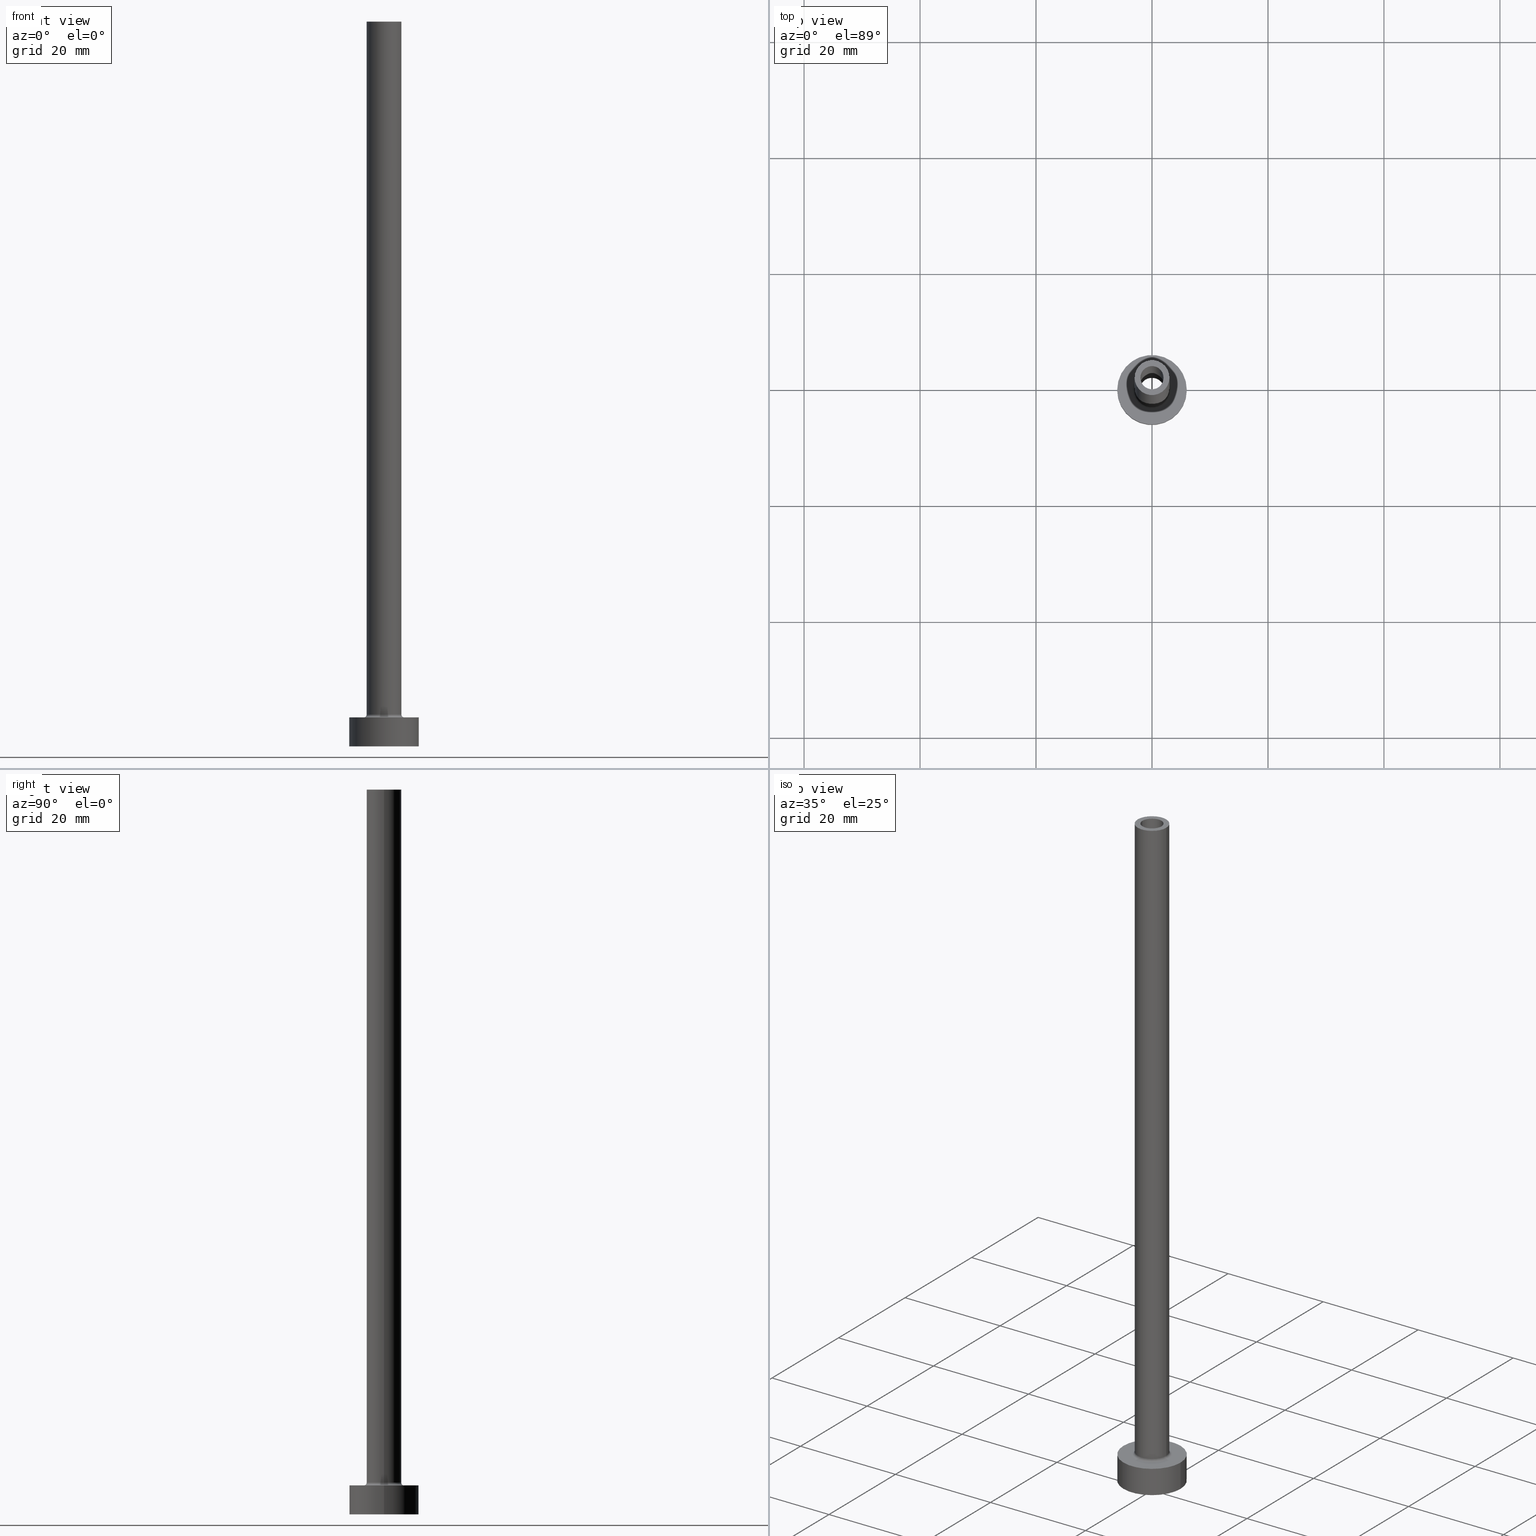
[diagram: canonical four-view strip — front | top / right | iso, engineering-drawing reading convention]
A machine part, canonical four-view strip (front | top / right | iso — engineering-drawing reading convention). The complete STEP part file that produces these views, byte-faithful:
ISO-10303-21;
HEADER;
FILE_DESCRIPTION (( 'STEP AP203' ),
    '1' );
FILE_NAME ('3db4.STEP',
    '2023-02-13T11:59:37',
    ( '' ),
    ( '' ),
    'SwSTEP 2.0',
    'SolidWorks 2019',
    '' );
FILE_SCHEMA (( 'CONFIG_CONTROL_DESIGN' ));
ENDSEC;

DATA;
#1 = EDGE_CURVE ( 'NONE', #342, #305, #122, .T. ) ;
#2 = ORIENTED_EDGE ( 'NONE', *, *, #233, .F. ) ;
#3 = LINE ( 'NONE', #146, #54 ) ;
#4 = EDGE_LOOP ( 'NONE', ( #455, #388, #269, #357 ) ) ;
#5 = VERTEX_POINT ( 'NONE', #42 ) ;
#6 = CARTESIAN_POINT ( 'NONE',  ( 0.000000000000000000, 0.000000000000000000, 0.000000000000000000 ) ) ;
#7 = DIRECTION ( 'NONE',  ( 0.000000000000000000, 0.000000000000000000, 1.000000000000000000 ) ) ;
#8 = ORIENTED_EDGE ( 'NONE', *, *, #61, .T. ) ;
#9 = AXIS2_PLACEMENT_3D ( 'NONE', #226, #79, #372 ) ;
#10 = DIRECTION ( 'NONE',  ( 1.000000000000000000, 0.000000000000000000, 0.000000000000000000 ) ) ;
#11 = DIRECTION ( 'NONE',  ( 0.000000000000000000, 0.000000000000000000, 1.000000000000000000 ) ) ;
#12 = AXIS2_PLACEMENT_3D ( 'NONE', #256, #204, #396 ) ;
#13 = VECTOR ( 'NONE', #126, 1000.000000000000000 ) ;
#14 = DIRECTION ( 'NONE',  ( -0.000000000000000000, -0.000000000000000000, -1.000000000000000000 ) ) ;
#15 = CYLINDRICAL_SURFACE ( 'NONE', #415, 6.000000000000000888 ) ;
#16 = CARTESIAN_POINT ( 'NONE',  ( -2.149999999999999911, 0.000000000000000000, 0.000000000000000000 ) ) ;
#17 = DIRECTION ( 'NONE',  ( 0.000000000000000000, 0.000000000000000000, 1.000000000000000000 ) ) ;
#18 = CARTESIAN_POINT ( 'NONE',  ( 0.000000000000000000, 0.000000000000000000, 5.000000000000000000 ) ) ;
#19 = ORGANIZATION ( 'NEUR�EN�', 'NEUR�EN�', '' ) ;
#20 = FACE_BOUND ( 'NONE', #93, .T. ) ;
#21 = APPROVAL ( #84, 'NEUR�EN�' ) ;
#22 = PERSON ( 'NEUR�EN�', 'NEUR�EN�', 'NEUR�EN�', ('NEUR�EN�'), ('NEUR�EN�'), ('NEUR�EN�') ) ;
#23 = VERTEX_POINT ( 'NONE', #187 ) ;
#24 = CARTESIAN_POINT ( 'NONE',  ( 0.000000000000000000, 0.000000000000000000, 80.00000000000000000 ) ) ;
#25 = ORIENTED_EDGE ( 'NONE', *, *, #144, .F. ) ;
#26 = AXIS2_PLACEMENT_3D ( 'NONE', #6, #205, #334 ) ;
#27 = PERSON_AND_ORGANIZATION ( #22, #19 ) ;
#28 = VERTEX_POINT ( 'NONE', #333 ) ;
#29 = DIRECTION ( 'NONE',  ( 1.000000000000000000, 0.000000000000000000, 0.000000000000000000 ) ) ;
#30 = FACE_OUTER_BOUND ( 'NONE', #227, .T. ) ;
#31 = ORIENTED_EDGE ( 'NONE', *, *, #332, .F. ) ;
#32 = CIRCLE ( 'NONE', #361, 2.000000000000000000 ) ;
#33 = DATE_TIME_ROLE ( 'classification_date' ) ;
#34 = EDGE_LOOP ( 'NONE', ( #38, #378, #207, #181 ) ) ;
#35 = CYLINDRICAL_SURFACE ( 'NONE', #90, 6.000000000000000888 ) ;
#36 = FACE_BOUND ( 'NONE', #460, .T. ) ;
#37 =( NAMED_UNIT ( * ) PLANE_ANGLE_UNIT ( ) SI_UNIT ( $, .RADIAN. ) );
#38 = ORIENTED_EDGE ( 'NONE', *, *, #387, .F. ) ;
#39 = EDGE_LOOP ( 'NONE', ( #423, #298 ) ) ;
#40 = DIRECTION ( 'NONE',  ( -0.000000000000000000, -0.000000000000000000, -1.000000000000000000 ) ) ;
#41 = EDGE_LOOP ( 'NONE', ( #395, #133, #135, #25 ) ) ;
#42 = CARTESIAN_POINT ( 'NONE',  ( 2.149999999999999911, 2.632990618166808742E-16, 0.000000000000000000 ) ) ;
#43 = VECTOR ( 'NONE', #64, 1000.000000000000000 ) ;
#44 = EDGE_CURVE ( 'NONE', #297, #421, #32, .T. ) ;
#45 = ADVANCED_FACE ( 'NONE', ( #20, #162 ), #96, .F. ) ;
#46 = DIRECTION ( 'NONE',  ( 1.000000000000000000, 0.000000000000000000, 0.000000000000000000 ) ) ;
#47 = APPROVAL_PERSON_ORGANIZATION ( #259, #160, #358 ) ;
#48 = CARTESIAN_POINT ( 'NONE',  ( 3.500000000000000444, 0.000000000000000000, 5.000000000000002665 ) ) ;
#49 = DIRECTION ( 'NONE',  ( 0.000000000000000000, 0.000000000000000000, 1.000000000000000000 ) ) ;
#50 = PERSON_AND_ORGANIZATION_ROLE ( 'creator' ) ;
#51 = DIRECTION ( 'NONE',  ( 1.000000000000000000, 0.000000000000000000, 0.000000000000000000 ) ) ;
#52 = PERSON_AND_ORGANIZATION ( #22, #19 ) ;
#53 = DIRECTION ( 'NONE',  ( -1.000000000000000000, 1.224646799147354440E-16, 0.000000000000000000 ) ) ;
#54 = VECTOR ( 'NONE', #217, 1000.000000000000000 ) ;
#55 = LOCAL_TIME ( 12, 59, 37.00000000000000000, #98 ) ;
#56 = CALENDAR_DATE ( 2023, 13, 2 ) ;
#57 = ADVANCED_FACE ( 'NONE', ( #409 ), #15, .T. ) ;
#58 = VERTEX_POINT ( 'NONE', #381 ) ;
#59 = CARTESIAN_POINT ( 'NONE',  ( -2.000000000000000000, 0.000000000000000000, 80.00000000000000000 ) ) ;
#60 = DIRECTION ( 'NONE',  ( 0.000000000000000000, 0.000000000000000000, 1.000000000000000000 ) ) ;
#61 = EDGE_CURVE ( 'NONE', #28, #58, #131, .T. ) ;
#62 = PRODUCT_DEFINITION_FORMATION_WITH_SPECIFIED_SOURCE ( 'LIBOVOLN�', '', #74, .NOT_KNOWN. ) ;
#63 = VERTEX_POINT ( 'NONE', #270 ) ;
#64 = DIRECTION ( 'NONE',  ( 0.000000000000000000, 0.000000000000000000, -1.000000000000000000 ) ) ;
#65 = ORIENTED_EDGE ( 'NONE', *, *, #1, .T. ) ;
#66 = DIRECTION ( 'NONE',  ( 0.000000000000000000, 0.000000000000000000, -1.000000000000000000 ) ) ;
#67 = CARTESIAN_POINT ( 'NONE',  ( -2.000000000000000000, 0.000000000000000000, 125.0000000000000000 ) ) ;
#68 = EDGE_CURVE ( 'NONE', #28, #179, #215, .T. ) ;
#69 = CARTESIAN_POINT ( 'NONE',  ( 2.000000000000000000, 2.449293598294705921E-16, 125.0000000000000000 ) ) ;
#70 = DIRECTION ( 'NONE',  ( 1.000000000000000000, 0.000000000000000000, 0.000000000000000000 ) ) ;
#71 = VECTOR ( 'NONE', #377, 1000.000000000000000 ) ;
#72 = EDGE_LOOP ( 'NONE', ( #414, #288, #249, #128 ) ) ;
#73 = EDGE_LOOP ( 'NONE', ( #319, #244 ) ) ;
#74 = PRODUCT ( '3db4', '3db4', '', ( #311 ) ) ;
#75 = AXIS2_PLACEMENT_3D ( 'NONE', #436, #7, #219 ) ;
#76 = APPROVAL ( #399, 'NEUR�EN�' ) ;
#77 = EDGE_CURVE ( 'NONE', #5, #290, #299, .T. ) ;
#78 = ORIENTED_EDGE ( 'NONE', *, *, #129, .F. ) ;
#79 = DIRECTION ( 'NONE',  ( 0.000000000000000000, 0.000000000000000000, 1.000000000000000000 ) ) ;
#80 = CYLINDRICAL_SURFACE ( 'NONE', #242, 3.000000000000000444 ) ;
#81 = DIRECTION ( 'NONE',  ( -0.000000000000000000, -0.000000000000000000, -1.000000000000000000 ) ) ;
#82 = PERSON_AND_ORGANIZATION ( #22, #19 ) ;
#83 = CARTESIAN_POINT ( 'NONE',  ( -3.500000000000000444, 4.286263797015737088E-16, 5.500000000000005329 ) ) ;
#84 = APPROVAL_STATUS ( 'not_yet_approved' ) ;
#85 = DIRECTION ( 'NONE',  ( 0.000000000000000000, -1.000000000000000000, 0.000000000000000000 ) ) ;
#86 = CARTESIAN_POINT ( 'NONE',  ( 0.000000000000000000, 0.000000000000000000, 5.000000000000000000 ) ) ;
#87 = CARTESIAN_POINT ( 'NONE',  ( 0.000000000000000000, 0.000000000000000000, 80.00000000000000000 ) ) ;
#88 = EDGE_CURVE ( 'NONE', #63, #97, #442, .T. ) ;
#89 = DATE_TIME_ROLE ( 'creation_date' ) ;
#90 = AXIS2_PLACEMENT_3D ( 'NONE', #328, #40, #360 ) ;
#91 = CARTESIAN_POINT ( 'NONE',  ( 6.000000000000000888, 7.347880794884120722E-16, 5.000000000000000000 ) ) ;
#92 = APPROVAL_PERSON_ORGANIZATION ( #52, #21, #374 ) ;
#93 = EDGE_LOOP ( 'NONE', ( #351, #424 ) ) ;
#94 = DIRECTION ( 'NONE',  ( 0.000000000000000000, 0.000000000000000000, 1.000000000000000000 ) ) ;
#95 = EDGE_CURVE ( 'NONE', #58, #434, #335, .T. ) ;
#96 = PLANE ( 'NONE',  #450 ) ;
#97 = VERTEX_POINT ( 'NONE', #192 ) ;
#98 = COORDINATED_UNIVERSAL_TIME_OFFSET ( 1, 0, .AHEAD. ) ;
#99 = CC_DESIGN_SECURITY_CLASSIFICATION ( #253, ( #62 ) ) ;
#100 = CARTESIAN_POINT ( 'NONE',  ( 0.000000000000000000, 0.000000000000000000, 0.000000000000000000 ) ) ;
#101 = CARTESIAN_POINT ( 'NONE',  ( -6.000000000000000888, 0.000000000000000000, 5.000000000000000000 ) ) ;
#102 = CIRCLE ( 'NONE', #291, 6.000000000000000888 ) ;
#103 = CARTESIAN_POINT ( 'NONE',  ( -3.500000000000000444, 4.286263797015737088E-16, 5.000000000000002665 ) ) ;
#104 =( NAMED_UNIT ( * ) SI_UNIT ( $, .STERADIAN. ) SOLID_ANGLE_UNIT ( ) );
#105 = PERSON_AND_ORGANIZATION_ROLE ( 'classification_officer' ) ;
#106 = CARTESIAN_POINT ( 'NONE',  ( 0.000000000000000000, 0.000000000000000000, 5.500000000000005329 ) ) ;
#107 = AXIS2_PLACEMENT_3D ( 'NONE', #392, #210, #393 ) ;
#108 = APPROVAL_DATE_TIME ( #429, #76 ) ;
#109 = ORIENTED_EDGE ( 'NONE', *, *, #428, .T. ) ;
#110 = LOCAL_TIME ( 12, 59, 37.00000000000000000, #384 ) ;
#111 = ORIENTED_EDGE ( 'NONE', *, *, #196, .F. ) ;
#112 = PERSON_AND_ORGANIZATION_ROLE ( 'creator' ) ;
#113 = DIRECTION ( 'NONE',  ( 0.000000000000000000, 0.000000000000000000, 1.000000000000000000 ) ) ;
#114 = FACE_OUTER_BOUND ( 'NONE', #330, .T. ) ;
#115 = EDGE_CURVE ( 'NONE', #294, #348, #102, .T. ) ;
#116 = DIRECTION ( 'NONE',  ( -1.000000000000000000, 0.000000000000000000, 0.000000000000000000 ) ) ;
#117 = FACE_OUTER_BOUND ( 'NONE', #72, .T. ) ;
#118 = CARTESIAN_POINT ( 'NONE',  ( 0.000000000000000000, 0.000000000000000000, 125.0000000000000000 ) ) ;
#119 = FACE_OUTER_BOUND ( 'NONE', #4, .T. ) ;
#120 = CIRCLE ( 'NONE', #107, 3.500000000000000444 ) ;
#121 = ADVANCED_FACE ( 'NONE', ( #446 ), #195, .F. ) ;
#122 = CIRCLE ( 'NONE', #238, 6.000000000000000888 ) ;
#123 = CARTESIAN_POINT ( 'NONE',  ( 0.000000000000000000, 0.000000000000000000, 5.000000000000000000 ) ) ;
#124 = DIRECTION ( 'NONE',  ( 1.000000000000000000, 0.000000000000000000, 0.000000000000000000 ) ) ;
#125 = FACE_BOUND ( 'NONE', #169, .T. ) ;
#126 = DIRECTION ( 'NONE',  ( -0.000000000000000000, -0.000000000000000000, -1.000000000000000000 ) ) ;
#127 = CARTESIAN_POINT ( 'NONE',  ( 0.000000000000000000, 0.000000000000000000, 0.000000000000000000 ) ) ;
#128 = ORIENTED_EDGE ( 'NONE', *, *, #212, .F. ) ;
#129 = EDGE_CURVE ( 'NONE', #305, #342, #263, .T. ) ;
#130 = CARTESIAN_POINT ( 'NONE',  ( -6.000000000000000888, 0.000000000000000000, 5.000000000000000000 ) ) ;
#131 = CIRCLE ( 'NONE', #317, 3.000000000000000444 ) ;
#132 = COORDINATED_UNIVERSAL_TIME_OFFSET ( 1, 0, .AHEAD. ) ;
#133 = ORIENTED_EDGE ( 'NONE', *, *, #387, .T. ) ;
#134 = DIRECTION ( 'NONE',  ( 0.000000000000000000, 0.000000000000000000, 1.000000000000000000 ) ) ;
#135 = ORIENTED_EDGE ( 'NONE', *, *, #77, .T. ) ;
#136 = DIRECTION ( 'NONE',  ( -1.000000000000000000, 0.000000000000000000, 0.000000000000000000 ) ) ;
#137 = CC_DESIGN_APPROVAL ( #160, ( #62 ) ) ;
#138 = ADVANCED_FACE ( 'NONE', ( #198 ), #245, .F. ) ;
#139 = CARTESIAN_POINT ( 'NONE',  ( 2.000000000000000000, 2.449293598294705921E-16, 80.00000000000000000 ) ) ;
#140 = LINE ( 'NONE', #454, #43 ) ;
#141 = ORIENTED_EDGE ( 'NONE', *, *, #115, .F. ) ;
#142 = CIRCLE ( 'NONE', #222, 2.149999999999999911 ) ;
#143 = ORIENTED_EDGE ( 'NONE', *, *, #129, .T. ) ;
#144 = EDGE_CURVE ( 'NONE', #23, #290, #3, .T. ) ;
#145 = VERTEX_POINT ( 'NONE', #425 ) ;
#146 = CARTESIAN_POINT ( 'NONE',  ( -2.149999999999999911, 0.000000000000000000, 86.08111831820431803 ) ) ;
#147 = PLANE ( 'NONE',  #354 ) ;
#148 = CC_DESIGN_DATE_AND_TIME_ASSIGNMENT ( #243, #33, ( #253 ) ) ;
#149 = PERSON_AND_ORGANIZATION ( #22, #19 ) ;
#150 = ORIENTED_EDGE ( 'NONE', *, *, #183, .F. ) ;
#151 = CARTESIAN_POINT ( 'NONE',  ( 2.000000000000000000, 2.449293598294705921E-16, 125.0000000000000000 ) ) ;
#152 = EDGE_CURVE ( 'NONE', #177, #297, #461, .T. ) ;
#153 = ORIENTED_EDGE ( 'NONE', *, *, #332, .T. ) ;
#154 = EDGE_CURVE ( 'NONE', #58, #28, #157, .T. ) ;
#155 = FACE_OUTER_BOUND ( 'NONE', #41, .T. ) ;
#156 = DESIGN_CONTEXT ( 'detailed design', #427, 'design' ) ;
#157 = CIRCLE ( 'NONE', #412, 3.000000000000000444 ) ;
#158 = DIRECTION ( 'NONE',  ( -0.000000000000000000, -0.000000000000000000, -1.000000000000000000 ) ) ;
#159 = AXIS2_PLACEMENT_3D ( 'NONE', #284, #165, #313 ) ;
#160 = APPROVAL ( #206, 'NEUR�EN�' ) ;
#161 = APPROVAL_PERSON_ORGANIZATION ( #149, #76, #180 ) ;
#162 = FACE_OUTER_BOUND ( 'NONE', #39, .T. ) ;
#163 = AXIS2_PLACEMENT_3D ( 'NONE', #83, #189, #53 ) ;
#164 = FACE_OUTER_BOUND ( 'NONE', #426, .T. ) ;
#165 = DIRECTION ( 'NONE',  ( 0.000000000000000000, 0.000000000000000000, -1.000000000000000000 ) ) ;
#166 = ADVANCED_FACE ( 'NONE', ( #182 ), #35, .T. ) ;
#167 = CIRCLE ( 'NONE', #435, 2.149999999999999911 ) ;
#168 = DIRECTION ( 'NONE',  ( -0.000000000000000000, -0.000000000000000000, -1.000000000000000000 ) ) ;
#169 = EDGE_LOOP ( 'NONE', ( #240, #325 ) ) ;
#170 = DIRECTION ( 'NONE',  ( 0.000000000000000000, 0.000000000000000000, 1.000000000000000000 ) ) ;
#171 = EDGE_LOOP ( 'NONE', ( #197, #200, #321, #232 ) ) ;
#172 = DIRECTION ( 'NONE',  ( 1.000000000000000000, 0.000000000000000000, 0.000000000000000000 ) ) ;
#173 = CC_DESIGN_PERSON_AND_ORGANIZATION_ASSIGNMENT ( #82, #306, ( #74 ) ) ;
#174 = LINE ( 'NONE', #101, #13 ) ;
#175 = CIRCLE ( 'NONE', #289, 3.500000000000000444 ) ;
#176 = TOROIDAL_SURFACE ( 'NONE', #194, 3.500000000000000444, 0.5000000000000000000 ) ;
#177 = VERTEX_POINT ( 'NONE', #151 ) ;
#178 = DIRECTION ( 'NONE',  ( 0.000000000000000000, 0.000000000000000000, -1.000000000000000000 ) ) ;
#179 = VERTEX_POINT ( 'NONE', #103 ) ;
#180 = APPROVAL_ROLE ( '' ) ;
#181 = ORIENTED_EDGE ( 'NONE', *, *, #322, .T. ) ;
#182 = FACE_OUTER_BOUND ( 'NONE', #237, .T. ) ;
#183 = EDGE_CURVE ( 'NONE', #348, #294, #366, .T. ) ;
#184 = ORIENTED_EDGE ( 'NONE', *, *, #322, .F. ) ;
#185 = DIRECTION ( 'NONE',  ( 1.000000000000000000, 0.000000000000000000, 0.000000000000000000 ) ) ;
#186 = DIRECTION ( 'NONE',  ( -1.000000000000000000, 0.000000000000000000, 0.000000000000000000 ) ) ;
#187 = CARTESIAN_POINT ( 'NONE',  ( -2.149999999999999911, 0.000000000000000000, 80.00000000000000000 ) ) ;
#188 = AXIS2_PLACEMENT_3D ( 'NONE', #371, #443, #124 ) ;
#189 = DIRECTION ( 'NONE',  ( 1.224646799147353207E-16, 1.000000000000000000, -0.000000000000000000 ) ) ;
#190 = CARTESIAN_POINT ( 'NONE',  ( 0.000000000000000000, 0.000000000000000000, 125.0000000000000000 ) ) ;
#191 = EDGE_CURVE ( 'NONE', #177, #145, #314, .T. ) ;
#192 = CARTESIAN_POINT ( 'NONE',  ( 3.000000000000000444, 3.673940397442060361E-16, 125.0000000000000000 ) ) ;
#193 = DIRECTION ( 'NONE',  ( -0.000000000000000000, -0.000000000000000000, -1.000000000000000000 ) ) ;
#194 = AXIS2_PLACEMENT_3D ( 'NONE', #403, #447, #46 ) ;
#195 = CYLINDRICAL_SURFACE ( 'NONE', #159, 2.149999999999999911 ) ;
#196 = EDGE_CURVE ( 'NONE', #421, #297, #287, .T. ) ;
#197 = ORIENTED_EDGE ( 'NONE', *, *, #152, .F. ) ;
#198 = FACE_OUTER_BOUND ( 'NONE', #171, .T. ) ;
#199 = TOROIDAL_SURFACE ( 'NONE', #188, 3.500000000000000444, 0.5000000000000000000 ) ;
#200 = ORIENTED_EDGE ( 'NONE', *, *, #191, .T. ) ;
#201 = ORIENTED_EDGE ( 'NONE', *, *, #380, .F. ) ;
#202 = PERSON_AND_ORGANIZATION ( #22, #19 ) ;
#203 = ORIENTED_EDGE ( 'NONE', *, *, #1, .F. ) ;
#204 = DIRECTION ( 'NONE',  ( 0.000000000000000000, 0.000000000000000000, 1.000000000000000000 ) ) ;
#205 = DIRECTION ( 'NONE',  ( 0.000000000000000000, 0.000000000000000000, 1.000000000000000000 ) ) ;
#206 = APPROVAL_STATUS ( 'not_yet_approved' ) ;
#207 = ORIENTED_EDGE ( 'NONE', *, *, #144, .T. ) ;
#208 = CIRCLE ( 'NONE', #315, 2.149999999999999911 ) ;
#209 = CALENDAR_DATE ( 2023, 13, 2 ) ;
#210 = DIRECTION ( 'NONE',  ( -0.000000000000000000, -0.000000000000000000, -1.000000000000000000 ) ) ;
#211 = PLANE ( 'NONE',  #26 ) ;
#212 = EDGE_CURVE ( 'NONE', #179, #434, #120, .T. ) ;
#213 = CARTESIAN_POINT ( 'NONE',  ( 0.000000000000000000, 0.000000000000000000, 125.0000000000000000 ) ) ;
#214 = CLOSED_SHELL ( 'NONE', ( #344, #370, #422, #271, #166, #57, #251, #229, #456, #445, #356, #121, #45, #138 ) ) ;
#215 = CIRCLE ( 'NONE', #163, 0.4999999999999995559 ) ;
#216 = ORIENTED_EDGE ( 'NONE', *, *, #212, .T. ) ;
#217 = DIRECTION ( 'NONE',  ( 0.000000000000000000, 0.000000000000000000, -1.000000000000000000 ) ) ;
#218 = DATE_AND_TIME ( #318, #110 ) ;
#219 = DIRECTION ( 'NONE',  ( 1.000000000000000000, 0.000000000000000000, -0.000000000000000000 ) ) ;
#220 = AXIS2_PLACEMENT_3D ( 'NONE', #100, #60, #379 ) ;
#221 = CARTESIAN_POINT ( 'NONE',  ( 2.149999999999999911, 2.632990618166808742E-16, 80.00000000000000000 ) ) ;
#222 = AXIS2_PLACEMENT_3D ( 'NONE', #24, #248, #386 ) ;
#223 = LINE ( 'NONE', #369, #303 ) ;
#224 = CYLINDRICAL_SURFACE ( 'NONE', #281, 2.000000000000000000 ) ;
#225 = EDGE_CURVE ( 'NONE', #63, #28, #398, .T. ) ;
#226 = CARTESIAN_POINT ( 'NONE',  ( 0.000000000000000000, 0.000000000000000000, 125.0000000000000000 ) ) ;
#227 = EDGE_LOOP ( 'NONE', ( #295, #418 ) ) ;
#228 = AXIS2_PLACEMENT_3D ( 'NONE', #213, #324, #116 ) ;
#229 = ADVANCED_FACE ( 'NONE', ( #36, #114 ), #211, .F. ) ;
#230 = PLANE ( 'NONE',  #75 ) ;
#231 = DATE_AND_TIME ( #56, #457 ) ;
#232 = ORIENTED_EDGE ( 'NONE', *, *, #44, .F. ) ;
#233 = EDGE_CURVE ( 'NONE', #97, #58, #223, .T. ) ;
#234 = VECTOR ( 'NONE', #158, 1000.000000000000000 ) ;
#235 = CC_DESIGN_APPROVAL ( #76, ( #253 ) ) ;
#236 = DIRECTION ( 'NONE',  ( 0.000000000000000000, 0.000000000000000000, 1.000000000000000000 ) ) ;
#237 = EDGE_LOOP ( 'NONE', ( #150, #336, #143, #31 ) ) ;
#238 = AXIS2_PLACEMENT_3D ( 'NONE', #365, #113, #400 ) ;
#239 = ORIENTED_EDGE ( 'NONE', *, *, #88, .F. ) ;
#240 = ORIENTED_EDGE ( 'NONE', *, *, #428, .F. ) ;
#241 = PRODUCT_DEFINITION ( 'NEZN�M�', '', #62, #156 ) ;
#242 = AXIS2_PLACEMENT_3D ( 'NONE', #190, #81, #301 ) ;
#243 = DATE_AND_TIME ( #209, #55 ) ;
#244 = ORIENTED_EDGE ( 'NONE', *, *, #312, .T. ) ;
#245 = CYLINDRICAL_SURFACE ( 'NONE', #308, 2.000000000000000000 ) ;
#246 = AXIS2_PLACEMENT_3D ( 'NONE', #408, #85, #341 ) ;
#247 = CARTESIAN_POINT ( 'NONE',  ( -6.000000000000000888, 0.000000000000000000, 0.000000000000000000 ) ) ;
#248 = DIRECTION ( 'NONE',  ( 0.000000000000000000, 0.000000000000000000, 1.000000000000000000 ) ) ;
#249 = ORIENTED_EDGE ( 'NONE', *, *, #95, .T. ) ;
#250 = DIRECTION ( 'NONE',  ( 0.000000000000000000, 0.000000000000000000, 1.000000000000000000 ) ) ;
#251 = ADVANCED_FACE ( 'NONE', ( #266, #30 ), #147, .T. ) ;
#252 = DIRECTION ( 'NONE',  ( 0.000000000000000000, 0.000000000000000000, 1.000000000000000000 ) ) ;
#253 = SECURITY_CLASSIFICATION ( '', '', #293 ) ;
#254 = SHAPE_DEFINITION_REPRESENTATION ( #339, #264 ) ;
#255 = ORIENTED_EDGE ( 'NONE', *, *, #380, .T. ) ;
#256 = CARTESIAN_POINT ( 'NONE',  ( 0.000000000000000000, 0.000000000000000000, 125.0000000000000000 ) ) ;
#257 = PRODUCT_RELATED_PRODUCT_CATEGORY ( 'detail', '', ( #74 ) ) ;
#258 = DIRECTION ( 'NONE',  ( 0.000000000000000000, 0.000000000000000000, 1.000000000000000000 ) ) ;
#259 = PERSON_AND_ORGANIZATION ( #22, #19 ) ;
#260 = VERTEX_POINT ( 'NONE', #221 ) ;
#261 = PERSON_AND_ORGANIZATION ( #22, #19 ) ;
#262 = EDGE_LOOP ( 'NONE', ( #350, #141, #153, #65 ) ) ;
#263 = CIRCLE ( 'NONE', #220, 6.000000000000000888 ) ;
#264 = ADVANCED_BREP_SHAPE_REPRESENTATION ( '3db4', ( #438, #304 ), #440 ) ;
#265 = CIRCLE ( 'NONE', #9, 2.000000000000000000 ) ;
#266 = FACE_BOUND ( 'NONE', #441, .T. ) ;
#267 = CARTESIAN_POINT ( 'NONE',  ( -3.000000000000000444, 0.000000000000000000, 125.0000000000000000 ) ) ;
#268 = AXIS2_PLACEMENT_3D ( 'NONE', #337, #277, #272 ) ;
#269 = ORIENTED_EDGE ( 'NONE', *, *, #154, .T. ) ;
#270 = CARTESIAN_POINT ( 'NONE',  ( -3.000000000000000444, 0.000000000000000000, 125.0000000000000000 ) ) ;
#271 = ADVANCED_FACE ( 'NONE', ( #119 ), #80, .T. ) ;
#272 = DIRECTION ( 'NONE',  ( 1.000000000000000000, 0.000000000000000000, 0.000000000000000000 ) ) ;
#273 = FACE_OUTER_BOUND ( 'NONE', #73, .T. ) ;
#274 = LOCAL_TIME ( 12, 59, 37.00000000000000000, #132 ) ;
#275 = APPLICATION_PROTOCOL_DEFINITION ( 'international standard', 'config_control_design', 1994, #302 ) ;
#276 = CALENDAR_DATE ( 2023, 13, 2 ) ;
#277 = DIRECTION ( 'NONE',  ( -0.000000000000000000, -0.000000000000000000, -1.000000000000000000 ) ) ;
#278 = DIRECTION ( 'NONE',  ( 1.000000000000000000, 0.000000000000000000, 0.000000000000000000 ) ) ;
#279 = ORIENTED_EDGE ( 'NONE', *, *, #152, .T. ) ;
#280 = CARTESIAN_POINT ( 'NONE',  ( 0.000000000000000000, 0.000000000000000000, 5.500000000000005329 ) ) ;
#281 = AXIS2_PLACEMENT_3D ( 'NONE', #118, #364, #186 ) ;
#282 = CARTESIAN_POINT ( 'NONE',  ( 6.000000000000000888, 7.347880794884120722E-16, 0.000000000000000000 ) ) ;
#283 = DIRECTION ( 'NONE',  ( -0.000000000000000000, -0.000000000000000000, -1.000000000000000000 ) ) ;
#284 = CARTESIAN_POINT ( 'NONE',  ( 0.000000000000000000, 0.000000000000000000, 86.08111831820431803 ) ) ;
#285 = EDGE_CURVE ( 'NONE', #23, #260, #167, .T. ) ;
#286 = LINE ( 'NONE', #67, #71 ) ;
#287 = CIRCLE ( 'NONE', #439, 2.000000000000000000 ) ;
#288 = ORIENTED_EDGE ( 'NONE', *, *, #154, .F. ) ;
#289 = AXIS2_PLACEMENT_3D ( 'NONE', #18, #168, #382 ) ;
#290 = VERTEX_POINT ( 'NONE', #16 ) ;
#291 = AXIS2_PLACEMENT_3D ( 'NONE', #123, #11, #307 ) ;
#292 = CC_DESIGN_PERSON_AND_ORGANIZATION_ASSIGNMENT ( #202, #112, ( #62 ) ) ;
#293 = SECURITY_CLASSIFICATION_LEVEL ( 'unclassified' ) ;
#294 = VERTEX_POINT ( 'NONE', #130 ) ;
#295 = ORIENTED_EDGE ( 'NONE', *, *, #115, .T. ) ;
#296 = CALENDAR_DATE ( 2023, 13, 2 ) ;
#297 = VERTEX_POINT ( 'NONE', #139 ) ;
#298 = ORIENTED_EDGE ( 'NONE', *, *, #397, .F. ) ;
#299 = CIRCLE ( 'NONE', #268, 2.149999999999999911 ) ;
#300 = CC_DESIGN_PERSON_AND_ORGANIZATION_ASSIGNMENT ( #261, #105, ( #253 ) ) ;
#301 = DIRECTION ( 'NONE',  ( -1.000000000000000000, 0.000000000000000000, 0.000000000000000000 ) ) ;
#302 = APPLICATION_CONTEXT ( 'configuration controlled 3d designs of mechanical parts and assemblies' ) ;
#303 = VECTOR ( 'NONE', #329, 1000.000000000000000 ) ;
#304 = AXIS2_PLACEMENT_3D ( 'NONE', #127, #236, #10 ) ;
#305 = VERTEX_POINT ( 'NONE', #282 ) ;
#306 = PERSON_AND_ORGANIZATION_ROLE ( 'design_owner' ) ;
#307 = DIRECTION ( 'NONE',  ( 1.000000000000000000, 0.000000000000000000, 0.000000000000000000 ) ) ;
#308 = AXIS2_PLACEMENT_3D ( 'NONE', #385, #66, #389 ) ;
#309 = CC_DESIGN_APPROVAL ( #21, ( #241 ) ) ;
#310 = DIRECTION ( 'NONE',  ( 0.000000000000000000, 0.000000000000000000, 1.000000000000000000 ) ) ;
#311 = MECHANICAL_CONTEXT ( 'NONE', #302, 'mechanical' ) ;
#312 = EDGE_CURVE ( 'NONE', #97, #63, #345, .T. ) ;
#313 = DIRECTION ( 'NONE',  ( -1.000000000000000000, 0.000000000000000000, 0.000000000000000000 ) ) ;
#314 = CIRCLE ( 'NONE', #12, 2.000000000000000000 ) ;
#315 = AXIS2_PLACEMENT_3D ( 'NONE', #346, #283, #172 ) ;
#316 = EDGE_CURVE ( 'NONE', #348, #305, #410, .T. ) ;
#317 = AXIS2_PLACEMENT_3D ( 'NONE', #280, #17, #331 ) ;
#318 = CALENDAR_DATE ( 2023, 13, 2 ) ;
#319 = ORIENTED_EDGE ( 'NONE', *, *, #88, .T. ) ;
#320 = APPROVAL_DATE_TIME ( #218, #160 ) ;
#321 = ORIENTED_EDGE ( 'NONE', *, *, #401, .T. ) ;
#322 = EDGE_CURVE ( 'NONE', #290, #5, #208, .T. ) ;
#323 = LOCAL_TIME ( 12, 59, 37.00000000000000000, #326 ) ;
#324 = DIRECTION ( 'NONE',  ( -0.000000000000000000, -0.000000000000000000, -1.000000000000000000 ) ) ;
#325 = ORIENTED_EDGE ( 'NONE', *, *, #191, .F. ) ;
#326 = COORDINATED_UNIVERSAL_TIME_OFFSET ( 1, 0, .AHEAD. ) ;
#327 = ORIENTED_EDGE ( 'NONE', *, *, #61, .F. ) ;
#328 = CARTESIAN_POINT ( 'NONE',  ( 0.000000000000000000, 0.000000000000000000, 5.000000000000000000 ) ) ;
#329 = DIRECTION ( 'NONE',  ( -0.000000000000000000, -0.000000000000000000, -1.000000000000000000 ) ) ;
#330 = EDGE_LOOP ( 'NONE', ( #203, #78 ) ) ;
#331 = DIRECTION ( 'NONE',  ( 1.000000000000000000, 0.000000000000000000, 0.000000000000000000 ) ) ;
#332 = EDGE_CURVE ( 'NONE', #294, #342, #174, .T. ) ;
#333 = CARTESIAN_POINT ( 'NONE',  ( -3.000000000000000444, 0.000000000000000000, 5.500000000000005329 ) ) ;
#334 = DIRECTION ( 'NONE',  ( 1.000000000000000000, 0.000000000000000000, -0.000000000000000000 ) ) ;
#335 = CIRCLE ( 'NONE', #246, 0.5000000000000004441 ) ;
#336 = ORIENTED_EDGE ( 'NONE', *, *, #316, .T. ) ;
#337 = CARTESIAN_POINT ( 'NONE',  ( 0.000000000000000000, 0.000000000000000000, 0.000000000000000000 ) ) ;
#338 = AXIS2_PLACEMENT_3D ( 'NONE', #432, #363, #185 ) ;
#339 = PRODUCT_DEFINITION_SHAPE ( 'NONE', 'NONE',  #241 ) ;
#340 = UNCERTAINTY_MEASURE_WITH_UNIT (LENGTH_MEASURE( 1.000000000000000082E-05 ), #458, 'distance_accuracy_value', 'NONE');
#341 = DIRECTION ( 'NONE',  ( 0.000000000000000000, 0.000000000000000000, -1.000000000000000000 ) ) ;
#342 = VERTEX_POINT ( 'NONE', #247 ) ;
#343 = PERSON_AND_ORGANIZATION ( #22, #19 ) ;
#344 = ADVANCED_FACE ( 'NONE', ( #394 ), #224, .F. ) ;
#345 = CIRCLE ( 'NONE', #376, 3.000000000000000444 ) ;
#346 = CARTESIAN_POINT ( 'NONE',  ( 0.000000000000000000, 0.000000000000000000, 0.000000000000000000 ) ) ;
#347 = DIRECTION ( 'NONE',  ( 1.000000000000000000, 0.000000000000000000, -0.000000000000000000 ) ) ;
#348 = VERTEX_POINT ( 'NONE', #437 ) ;
#349 = DIRECTION ( 'NONE',  ( 0.000000000000000000, 0.000000000000000000, -1.000000000000000000 ) ) ;
#350 = ORIENTED_EDGE ( 'NONE', *, *, #316, .F. ) ;
#351 = ORIENTED_EDGE ( 'NONE', *, *, #196, .T. ) ;
#352 = AXIS2_PLACEMENT_3D ( 'NONE', #373, #49, #51 ) ;
#353 = DIRECTION ( 'NONE',  ( -1.000000000000000000, 0.000000000000000000, 0.000000000000000000 ) ) ;
#354 = AXIS2_PLACEMENT_3D ( 'NONE', #433, #258, #444 ) ;
#355 = CARTESIAN_POINT ( 'NONE',  ( 0.000000000000000000, 0.000000000000000000, 80.00000000000000000 ) ) ;
#356 = ADVANCED_FACE ( 'NONE', ( #117 ), #176, .F. ) ;
#357 = ORIENTED_EDGE ( 'NONE', *, *, #225, .F. ) ;
#358 = APPROVAL_ROLE ( '' ) ;
#359 = ORIENTED_EDGE ( 'NONE', *, *, #401, .F. ) ;
#360 = DIRECTION ( 'NONE',  ( -1.000000000000000000, 0.000000000000000000, 0.000000000000000000 ) ) ;
#361 = AXIS2_PLACEMENT_3D ( 'NONE', #416, #94, #449 ) ;
#362 = ORIENTED_EDGE ( 'NONE', *, *, #225, .T. ) ;
#363 = DIRECTION ( 'NONE',  ( 0.000000000000000000, 0.000000000000000000, 1.000000000000000000 ) ) ;
#364 = DIRECTION ( 'NONE',  ( 0.000000000000000000, 0.000000000000000000, -1.000000000000000000 ) ) ;
#365 = CARTESIAN_POINT ( 'NONE',  ( 0.000000000000000000, 0.000000000000000000, 0.000000000000000000 ) ) ;
#366 = CIRCLE ( 'NONE', #338, 6.000000000000000888 ) ;
#367 = FACE_OUTER_BOUND ( 'NONE', #383, .T. ) ;
#368 = AXIS2_PLACEMENT_3D ( 'NONE', #453, #349, #353 ) ;
#369 = CARTESIAN_POINT ( 'NONE',  ( 3.000000000000000444, 3.673940397442060361E-16, 125.0000000000000000 ) ) ;
#370 = ADVANCED_FACE ( 'NONE', ( #155 ), #420, .F. ) ;
#371 = CARTESIAN_POINT ( 'NONE',  ( 0.000000000000000000, 0.000000000000000000, 5.500000000000005329 ) ) ;
#372 = DIRECTION ( 'NONE',  ( 1.000000000000000000, 0.000000000000000000, 0.000000000000000000 ) ) ;
#373 = CARTESIAN_POINT ( 'NONE',  ( 0.000000000000000000, 0.000000000000000000, 125.0000000000000000 ) ) ;
#374 = APPROVAL_ROLE ( '' ) ;
#375 = CC_DESIGN_PERSON_AND_ORGANIZATION_ASSIGNMENT ( #27, #459, ( #62 ) ) ;
#376 = AXIS2_PLACEMENT_3D ( 'NONE', #417, #170, #419 ) ;
#377 = DIRECTION ( 'NONE',  ( 0.000000000000000000, 0.000000000000000000, -1.000000000000000000 ) ) ;
#378 = ORIENTED_EDGE ( 'NONE', *, *, #397, .T. ) ;
#379 = DIRECTION ( 'NONE',  ( 1.000000000000000000, 0.000000000000000000, 0.000000000000000000 ) ) ;
#380 = EDGE_CURVE ( 'NONE', #434, #179, #175, .T. ) ;
#381 = CARTESIAN_POINT ( 'NONE',  ( 3.000000000000000444, 3.673940397442060361E-16, 5.500000000000005329 ) ) ;
#382 = DIRECTION ( 'NONE',  ( 1.000000000000000000, 0.000000000000000000, 0.000000000000000000 ) ) ;
#383 = EDGE_LOOP ( 'NONE', ( #2, #239, #362, #8 ) ) ;
#384 = COORDINATED_UNIVERSAL_TIME_OFFSET ( 1, 0, .AHEAD. ) ;
#385 = CARTESIAN_POINT ( 'NONE',  ( 0.000000000000000000, 0.000000000000000000, 125.0000000000000000 ) ) ;
#386 = DIRECTION ( 'NONE',  ( 1.000000000000000000, 0.000000000000000000, 0.000000000000000000 ) ) ;
#387 = EDGE_CURVE ( 'NONE', #260, #5, #140, .T. ) ;
#388 = ORIENTED_EDGE ( 'NONE', *, *, #233, .T. ) ;
#389 = DIRECTION ( 'NONE',  ( -1.000000000000000000, 0.000000000000000000, 0.000000000000000000 ) ) ;
#390 = CYLINDRICAL_SURFACE ( 'NONE', #228, 3.000000000000000444 ) ;
#391 = ORIENTED_EDGE ( 'NONE', *, *, #95, .F. ) ;
#392 = CARTESIAN_POINT ( 'NONE',  ( 0.000000000000000000, 0.000000000000000000, 5.000000000000000000 ) ) ;
#393 = DIRECTION ( 'NONE',  ( 1.000000000000000000, 0.000000000000000000, 0.000000000000000000 ) ) ;
#394 = FACE_OUTER_BOUND ( 'NONE', #405, .T. ) ;
#395 = ORIENTED_EDGE ( 'NONE', *, *, #285, .T. ) ;
#396 = DIRECTION ( 'NONE',  ( 1.000000000000000000, 0.000000000000000000, 0.000000000000000000 ) ) ;
#397 = EDGE_CURVE ( 'NONE', #260, #23, #142, .T. ) ;
#398 = LINE ( 'NONE', #267, #234 ) ;
#399 = APPROVAL_STATUS ( 'not_yet_approved' ) ;
#400 = DIRECTION ( 'NONE',  ( 1.000000000000000000, 0.000000000000000000, 0.000000000000000000 ) ) ;
#401 = EDGE_CURVE ( 'NONE', #145, #421, #286, .T. ) ;
#402 = ORIENTED_EDGE ( 'NONE', *, *, #68, .T. ) ;
#403 = CARTESIAN_POINT ( 'NONE',  ( 0.000000000000000000, 0.000000000000000000, 5.500000000000005329 ) ) ;
#404 = APPLICATION_PROTOCOL_DEFINITION ( 'international standard', 'config_control_design', 1994, #427 ) ;
#405 = EDGE_LOOP ( 'NONE', ( #109, #279, #111, #359 ) ) ;
#406 = CC_DESIGN_DATE_AND_TIME_ASSIGNMENT ( #411, #89, ( #241 ) ) ;
#407 = CARTESIAN_POINT ( 'NONE',  ( 0.000000000000000000, 0.000000000000000000, 80.00000000000000000 ) ) ;
#408 = CARTESIAN_POINT ( 'NONE',  ( 3.500000000000000444, 0.000000000000000000, 5.500000000000005329 ) ) ;
#409 = FACE_OUTER_BOUND ( 'NONE', #262, .T. ) ;
#410 = LINE ( 'NONE', #91, #413 ) ;
#411 = DATE_AND_TIME ( #276, #274 ) ;
#412 = AXIS2_PLACEMENT_3D ( 'NONE', #106, #252, #70 ) ;
#413 = VECTOR ( 'NONE', #193, 1000.000000000000000 ) ;
#414 = ORIENTED_EDGE ( 'NONE', *, *, #68, .F. ) ;
#415 = AXIS2_PLACEMENT_3D ( 'NONE', #86, #14, #136 ) ;
#416 = CARTESIAN_POINT ( 'NONE',  ( 0.000000000000000000, 0.000000000000000000, 80.00000000000000000 ) ) ;
#417 = CARTESIAN_POINT ( 'NONE',  ( 0.000000000000000000, 0.000000000000000000, 125.0000000000000000 ) ) ;
#418 = ORIENTED_EDGE ( 'NONE', *, *, #183, .T. ) ;
#419 = DIRECTION ( 'NONE',  ( 1.000000000000000000, 0.000000000000000000, 0.000000000000000000 ) ) ;
#420 = CYLINDRICAL_SURFACE ( 'NONE', #368, 2.149999999999999911 ) ;
#421 = VERTEX_POINT ( 'NONE', #59 ) ;
#422 = ADVANCED_FACE ( 'NONE', ( #164 ), #199, .F. ) ;
#423 = ORIENTED_EDGE ( 'NONE', *, *, #285, .F. ) ;
#424 = ORIENTED_EDGE ( 'NONE', *, *, #44, .T. ) ;
#425 = CARTESIAN_POINT ( 'NONE',  ( -2.000000000000000000, 0.000000000000000000, 125.0000000000000000 ) ) ;
#426 = EDGE_LOOP ( 'NONE', ( #327, #402, #201, #391 ) ) ;
#427 = APPLICATION_CONTEXT ( 'configuration controlled 3d designs of mechanical parts and assemblies' ) ;
#428 = EDGE_CURVE ( 'NONE', #145, #177, #265, .T. ) ;
#429 = DATE_AND_TIME ( #296, #323 ) ;
#430 = VECTOR ( 'NONE', #178, 1000.000000000000000 ) ;
#431 = ORIENTED_EDGE ( 'NONE', *, *, #77, .F. ) ;
#432 = CARTESIAN_POINT ( 'NONE',  ( 0.000000000000000000, 0.000000000000000000, 5.000000000000000000 ) ) ;
#433 = CARTESIAN_POINT ( 'NONE',  ( 0.000000000000000000, 0.000000000000000000, 5.000000000000000000 ) ) ;
#434 = VERTEX_POINT ( 'NONE', #48 ) ;
#435 = AXIS2_PLACEMENT_3D ( 'NONE', #87, #134, #278 ) ;
#436 = CARTESIAN_POINT ( 'NONE',  ( 0.000000000000000000, 0.000000000000000000, 125.0000000000000000 ) ) ;
#437 = CARTESIAN_POINT ( 'NONE',  ( 6.000000000000000888, 7.347880794884120722E-16, 5.000000000000000000 ) ) ;
#438 = MANIFOLD_SOLID_BREP ( 'Odebrat vysunut�m4', #214 ) ;
#439 = AXIS2_PLACEMENT_3D ( 'NONE', #355, #250, #29 ) ;
#440 =( GEOMETRIC_REPRESENTATION_CONTEXT ( 3 ) GLOBAL_UNCERTAINTY_ASSIGNED_CONTEXT ( ( #340 ) ) GLOBAL_UNIT_ASSIGNED_CONTEXT ( ( #458, #37, #104 ) ) REPRESENTATION_CONTEXT ( 'NONE', 'WORKASPACE' ) );
#441 = EDGE_LOOP ( 'NONE', ( #255, #216 ) ) ;
#442 = CIRCLE ( 'NONE', #352, 3.000000000000000444 ) ;
#443 = DIRECTION ( 'NONE',  ( 0.000000000000000000, 0.000000000000000000, 1.000000000000000000 ) ) ;
#444 = DIRECTION ( 'NONE',  ( 1.000000000000000000, 0.000000000000000000, -0.000000000000000000 ) ) ;
#445 = ADVANCED_FACE ( 'NONE', ( #125, #273 ), #230, .T. ) ;
#446 = FACE_OUTER_BOUND ( 'NONE', #34, .T. ) ;
#447 = DIRECTION ( 'NONE',  ( 0.000000000000000000, 0.000000000000000000, 1.000000000000000000 ) ) ;
#448 = COORDINATED_UNIVERSAL_TIME_OFFSET ( 1, 0, .AHEAD. ) ;
#449 = DIRECTION ( 'NONE',  ( 1.000000000000000000, 0.000000000000000000, 0.000000000000000000 ) ) ;
#450 = AXIS2_PLACEMENT_3D ( 'NONE', #407, #310, #347 ) ;
#451 = APPROVAL_DATE_TIME ( #231, #21 ) ;
#452 = CC_DESIGN_PERSON_AND_ORGANIZATION_ASSIGNMENT ( #343, #50, ( #241 ) ) ;
#453 = CARTESIAN_POINT ( 'NONE',  ( 0.000000000000000000, 0.000000000000000000, 86.08111831820431803 ) ) ;
#454 = CARTESIAN_POINT ( 'NONE',  ( 2.149999999999999911, 2.632990618166808742E-16, 86.08111831820431803 ) ) ;
#455 = ORIENTED_EDGE ( 'NONE', *, *, #312, .F. ) ;
#456 = ADVANCED_FACE ( 'NONE', ( #367 ), #390, .T. ) ;
#457 = LOCAL_TIME ( 12, 59, 37.00000000000000000, #448 ) ;
#458 =( LENGTH_UNIT ( ) NAMED_UNIT ( * ) SI_UNIT ( .MILLI., .METRE. ) );
#459 = PERSON_AND_ORGANIZATION_ROLE ( 'design_supplier' ) ;
#460 = EDGE_LOOP ( 'NONE', ( #184, #431 ) ) ;
#461 = LINE ( 'NONE', #69, #430 ) ;
ENDSEC;
END-ISO-10303-21;
